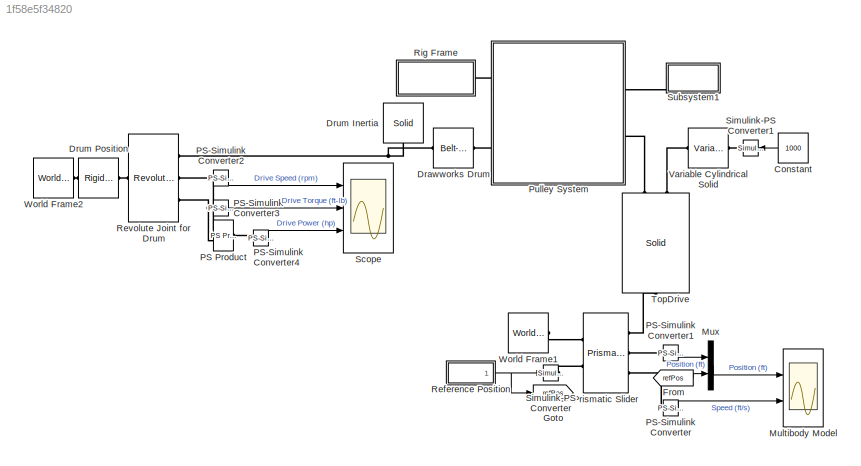
MODEL slx_1f58e5f34820
KIND model
CONFIG AbsTol = auto
CONFIG EnableMultiTasking = off
CONFIG FixedStep = auto
CONFIG InitFcn = G = 10;\nRdrum = 0.25;\nm = 1000;
CONFIG MaxStep = auto
CONFIG MinStep = auto
CONFIG PreLoadFcn = addpath('CAD_Files')
CONFIG RelTol = 1e-3
CONFIG SampleTimeConstraint = Unconstrained
CONFIG Solver = VariableStepAuto
CONFIG SolverName = VariableStepAuto
CONFIG StartTime = 0.0
CONFIG StopTime = 40
BLOCK [Constant] Constant
  Value = 1000
BLOCK [Reference] Drawworks Drum  REF=sm_lib/Belts and Cables/Belt-Cable Spool
  Ports = [0, 0, 0, 0, 0, 1, 1]
  SourceBlock = sm_lib/Belts and Cables/Belt-Cable Spool
  SourceProductBaseCode = MS
  SourceProductName = Simscape Multibody
  SourceType = Belt-Cable Spool
BLOCK [Reference] Drum Inertia  REF=sm_lib/Body Elements/Solid
  Ports = [0, 0, 0, 0, 0, 1]
  SourceBlock = sm_lib/Body Elements/Solid
  SourceProductBaseCode = MS
  SourceProductName = Simscape Multibody
  SourceType = Solid
BLOCK [Reference] Drum Position  REF=sm_lib/Frames and
Transforms/Rigid
Transform
  Ports = [0, 0, 0, 0, 0, 1, 1]
  SourceBlock = sm_lib/Frames and\nTransforms/Rigid\nTransform
  SourceProductBaseCode = MS
  SourceProductName = Simscape Multibody
  SourceType = Rigid\nTransform
BLOCK [From] From
  GotoTag = refPos
BLOCK [Goto] Goto
  GotoTag = refPos
BLOCK [Scope] Multibody Model
  Floating = off
  NumInputPorts = 2
  Ports = [2]
  ScopeSpecificationString = Simulink.scopes.TimeScopeBlockCfg('CurrentConfiguration', extmgr.ConfigurationSet(extmgr.Configuration('Core','General UI',true),extmgr.Configuration('Core','Source UI',true),extmgr.Configuration('Sources','WiredSimulink',true,'DataLoggingVariableName','ScopeData2'),extmgr.Configuration('Visuals','Time Domain',true,'SerializedDisplays',{struct('MinYLimReal','-6.03339','MaxYLimReal','54.30051','YLa...<+2068ch>
BLOCK [Mux] Mux
  DisplayOption = bar
  Inputs = 2
  Ports = [2, 1]
BLOCK [Reference] PS Product  REF=fl_lib/Physical Signals/Functions/PS Product
  Ports = [0, 0, 0, 0, 0, 2, 1]
  SourceBlock = fl_lib/Physical Signals/Functions/PS Product
  SourceProductBaseCode = SS
  SourceProductName = Simscape
  SourceType = PS Product
BLOCK [Reference] PS-Simulink Converter  REF=nesl_utility/PS-Simulink
Converter
  Ports = [0, 1, 0, 0, 0, 1]
  SourceBlock = nesl_utility/PS-Simulink\nConverter
  SourceProductBaseCode = SS
  SourceProductName = Simscape
  SourceType = PS-Simulink\nConverter
BLOCK [Reference] PS-Simulink Converter1  REF=nesl_utility/PS-Simulink
Converter
  Ports = [0, 1, 0, 0, 0, 1]
  SourceBlock = nesl_utility/PS-Simulink\nConverter
  SourceProductBaseCode = SS
  SourceProductName = Simscape
  SourceType = PS-Simulink\nConverter
BLOCK [Reference] PS-Simulink Converter2  REF=nesl_utility/PS-Simulink
Converter
  Ports = [0, 1, 0, 0, 0, 1]
  SourceBlock = nesl_utility/PS-Simulink\nConverter
  SourceProductBaseCode = SS
  SourceProductName = Simscape
  SourceType = PS-Simulink\nConverter
BLOCK [Reference] PS-Simulink Converter3  REF=nesl_utility/PS-Simulink
Converter
  Ports = [0, 1, 0, 0, 0, 1]
  SourceBlock = nesl_utility/PS-Simulink\nConverter
  SourceProductBaseCode = SS
  SourceProductName = Simscape
  SourceType = PS-Simulink\nConverter
BLOCK [Reference] PS-Simulink Converter4  REF=nesl_utility/PS-Simulink
Converter
  Ports = [0, 1, 0, 0, 0, 1]
  SourceBlock = nesl_utility/PS-Simulink\nConverter
  SourceProductBaseCode = SS
  SourceProductName = Simscape
  SourceType = PS-Simulink\nConverter
BLOCK [Reference] Prismatic Slider  REF=sm_lib/Joints/Prismatic
Joint
  Ports = [0, 0, 0, 0, 0, 2, 3]
  SourceBlock = sm_lib/Joints/Prismatic\nJoint
  SourceProductBaseCode = MS
  SourceProductName = Simscape Multibody
  SourceType = Prismatic\nJoint
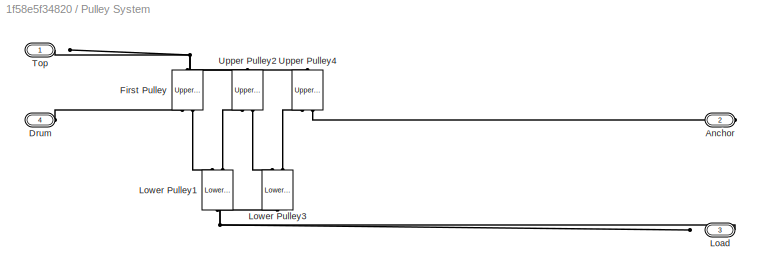
BLOCK [SubSystem] Pulley System
  Ports = [0, 0, 0, 0, 0, 2, 2]
  RequestExecContextInheritance = off
BLOCK [PMIOPort] Pulley System/Anchor
  Port = 2
  Side = Right
BLOCK [PMIOPort] Pulley System/Drum
  Port = 4
  Side = Left
BLOCK [Reference] Pulley System/First Pulley  REF=pulleyLibrary/UpperPulley
  Ports = [0, 0, 0, 0, 0, 1, 2]
  SourceBlock = pulleyLibrary/UpperPulley
BLOCK [PMIOPort] Pulley System/Load
  Port = 3
  Side = Right
BLOCK [Reference] Pulley System/Lower Pulley1  REF=pulleyLibrary/LowerPulley
  Ports = [0, 0, 0, 0, 0, 1, 2]
  SourceBlock = pulleyLibrary/LowerPulley
BLOCK [Reference] Pulley System/Lower Pulley3  REF=pulleyLibrary/LowerPulley
  Ports = [0, 0, 0, 0, 0, 1, 2]
  SourceBlock = pulleyLibrary/LowerPulley
BLOCK [PMIOPort] Pulley System/Top
  Side = Left
BLOCK [Reference] Pulley System/Upper Pulley2  REF=pulleyLibrary/UpperPulley
  Ports = [0, 0, 0, 0, 0, 1, 2]
  SourceBlock = pulleyLibrary/UpperPulley
BLOCK [Reference] Pulley System/Upper Pulley4  REF=pulleyLibrary/UpperPulley
  Ports = [0, 0, 0, 0, 0, 1, 2]
  SourceBlock = pulleyLibrary/UpperPulley
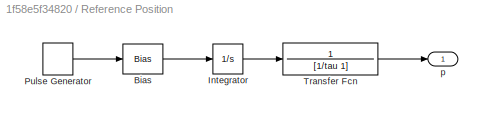
BLOCK [SubSystem] Reference Position
  Ports = [0, 1]
  RequestExecContextInheritance = off
BLOCK [Bias] Reference Position/Bias
  Bias = -dx/t
  SaturateOnIntegerOverflow = off
BLOCK [Integrator] Reference Position/Integrator
  Ports = [1, 1]
BLOCK [DiscretePulseGenerator] Reference Position/Pulse Generator
  Amplitude = dx/t*2
  Period = t*2
  Ports = [0, 1]
  PulseType = Time based
  PulseWidth = 50
BLOCK [TransferFcn] Reference Position/Transfer Fcn
  Denominator = [1/tau 1]
  Numerator = 1
BLOCK [Outport] Reference Position/p
  IconDisplay = Port number
BLOCK [Reference] Revolute Joint for Drum  REF=sm_lib/Joints/Revolute Joint
  Ports = [0, 0, 0, 0, 0, 1, 3]
  SourceBlock = sm_lib/Joints/Revolute Joint
  SourceProductBaseCode = MS
  SourceProductName = Simscape Multibody
  SourceType = Revolute Joint
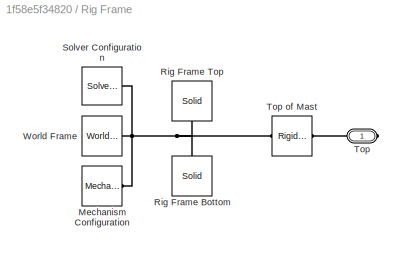
BLOCK [SubSystem] Rig Frame
  Ports = [0, 0, 0, 0, 0, 0, 1]
  RequestExecContextInheritance = off
BLOCK [Reference] Rig Frame/Mechanism Configuration  REF=sm_lib/Utilities/Mechanism
Configuration
  Ports = [0, 0, 0, 0, 0, 0, 1]
  SourceBlock = sm_lib/Utilities/Mechanism\nConfiguration
  SourceProductBaseCode = MS
  SourceProductName = Simscape Multibody
  SourceType = Mechanism\nConfiguration
BLOCK [Reference] Rig Frame/Rig Frame Bottom  REF=sm_lib/Body Elements/Solid
  Ports = [0, 0, 0, 0, 0, 1]
  SourceBlock = sm_lib/Body Elements/Solid
  SourceProductBaseCode = MS
  SourceProductName = Simscape Multibody
  SourceType = Solid
BLOCK [Reference] Rig Frame/Rig Frame Top  REF=sm_lib/Body Elements/Solid
  Ports = [0, 0, 0, 0, 0, 1]
  SourceBlock = sm_lib/Body Elements/Solid
  SourceProductBaseCode = MS
  SourceProductName = Simscape Multibody
  SourceType = Solid
BLOCK [Reference] Rig Frame/Solver Configuration   REF=nesl_utility/Solver
Configuration
  Ports = [0, 0, 0, 0, 0, 0, 1]
  SourceBlock = nesl_utility/Solver\nConfiguration
  SourceProductBaseCode = SS
  SourceProductName = Simscape
  SourceType = Solver\nConfiguration
BLOCK [PMIOPort] Rig Frame/Top
  Side = Right
BLOCK [Reference] Rig Frame/Top of Mast  REF=sm_lib/Frames and
Transforms/Rigid
Transform
  Ports = [0, 0, 0, 0, 0, 1, 1]
  SourceBlock = sm_lib/Frames and\nTransforms/Rigid\nTransform
  SourceProductBaseCode = MS
  SourceProductName = Simscape Multibody
  SourceType = Rigid\nTransform
BLOCK [Reference] Rig Frame/World Frame  REF=sm_lib/Frames and
Transforms/World Frame
  Ports = [0, 0, 0, 0, 0, 0, 1]
  SourceBlock = sm_lib/Frames and\nTransforms/World Frame
  SourceProductBaseCode = MS
  SourceProductName = Simscape Multibody
  SourceType = World Frame
BLOCK [Scope] Scope
  Floating = off
  NumInputPorts = 3
  Ports = [3]
  ScopeSpecificationString = Simulink.scopes.TimeScopeBlockCfg('CurrentConfiguration', extmgr.ConfigurationSet(extmgr.Configuration('Core','General UI',true),extmgr.Configuration('Core','Source UI',true),extmgr.Configuration('Sources','WiredSimulink',true,'DataLoggingVariableName','ScopeData1'),extmgr.Configuration('Visuals','Time Domain',true,'SerializedDisplays',{struct('MinYLimReal','-145.50164','MaxYLimReal','145.47121','...<+2754ch>
BLOCK [Reference] Simulink-PS Converter  REF=nesl_utility/Simulink-PS
Converter
  Ports = [1, 0, 0, 0, 0, 0, 1]
  SourceBlock = nesl_utility/Simulink-PS\nConverter
  SourceProductBaseCode = SS
  SourceProductName = Simscape
  SourceType = Simulink-PS\nConverter
BLOCK [Reference] Simulink-PS Converter1  REF=nesl_utility/Simulink-PS
Converter
  Ports = [1, 0, 0, 0, 0, 0, 1]
  SourceBlock = nesl_utility/Simulink-PS\nConverter
  SourceProductBaseCode = SS
  SourceProductName = Simscape
  SourceType = Simulink-PS\nConverter
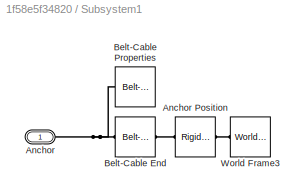
BLOCK [SubSystem] Subsystem1
  Ports = [0, 0, 0, 0, 0, 1]
  RequestExecContextInheritance = off
BLOCK [PMIOPort] Subsystem1/Anchor
  Side = Left
BLOCK [Reference] Subsystem1/Anchor Position  REF=sm_lib/Frames and
Transforms/Rigid
Transform
  Ports = [0, 0, 0, 0, 0, 1, 1]
  SourceBlock = sm_lib/Frames and\nTransforms/Rigid\nTransform
  SourceProductBaseCode = MS
  SourceProductName = Simscape Multibody
  SourceType = Rigid\nTransform
BLOCK [Reference] Subsystem1/Belt-Cable End  REF=sm_lib/Belts and Cables/Belt-Cable End
  Ports = [0, 0, 0, 0, 0, 1, 1]
  SourceBlock = sm_lib/Belts and Cables/Belt-Cable End
  SourceProductBaseCode = MS
  SourceProductName = Simscape Multibody
  SourceType = Belt-Cable End
BLOCK [Reference] Subsystem1/Belt-Cable Properties  REF=sm_lib/Belts and Cables/Belt-Cable
Properties
  Ports = [0, 0, 0, 0, 0, 1]
  SourceBlock = sm_lib/Belts and Cables/Belt-Cable\nProperties
  SourceProductBaseCode = MS
  SourceProductName = Simscape Multibody
  SourceType = Belt-Cable\nProperties
BLOCK [Reference] Subsystem1/World Frame3  REF=sm_lib/Frames and
Transforms/World Frame
  Ports = [0, 0, 0, 0, 0, 0, 1]
  SourceBlock = sm_lib/Frames and\nTransforms/World Frame
  SourceProductBaseCode = MS
  SourceProductName = Simscape Multibody
  SourceType = World Frame
BLOCK [Reference] TopDrive  REF=sm_lib/Body Elements/Solid
  Ports = [0, 0, 0, 0, 0, 2, 1]
  SourceBlock = sm_lib/Body Elements/Solid
  SourceProductBaseCode = MS
  SourceProductName = Simscape Multibody
  SourceType = Solid
BLOCK [Reference] Variable Cylindrical Solid  REF=sm_lib/Body Elements/Variable Mass/Variable
Cylindrical Solid
  Ports = [0, 0, 0, 0, 0, 1, 1]
  SourceBlock = sm_lib/Body Elements/Variable Mass/Variable\nCylindrical Solid
  SourceProductBaseCode = MS
  SourceProductName = Simscape Multibody
  SourceType = Variable\nCylindrical Solid
BLOCK [Reference] World Frame1  REF=sm_lib/Frames and
Transforms/World Frame
  Ports = [0, 0, 0, 0, 0, 0, 1]
  SourceBlock = sm_lib/Frames and\nTransforms/World Frame
  SourceProductBaseCode = MS
  SourceProductName = Simscape Multibody
  SourceType = World Frame
BLOCK [Reference] World Frame2  REF=sm_lib/Frames and
Transforms/World Frame
  Ports = [0, 0, 0, 0, 0, 0, 1]
  SourceBlock = sm_lib/Frames and\nTransforms/World Frame
  SourceProductBaseCode = MS
  SourceProductName = Simscape Multibody
  SourceType = World Frame
LINE Constant:1 -> Simulink-PS Converter1:1
LINE From:1 -> Mux:2
LINE Mux:1 -> Multibody Model:1
LINE PS-Simulink Converter1:1 -> Mux:1
LINE PS-Simulink Converter2:1 -> Scope:1
LINE PS-Simulink Converter3:1 -> Scope:2
LINE PS-Simulink Converter4:1 -> Scope:3
LINE PS-Simulink Converter:1 -> Multibody Model:2
LINE Reference Position/Bias:1 -> Reference Position/Integrator:1
LINE Reference Position/Integrator:1 -> Reference Position/Transfer Fcn:1
LINE Reference Position/Pulse Generator:1 -> Reference Position/Bias:1
LINE Reference Position/Transfer Fcn:1 -> Reference Position/p:1
NET Reference Position:1 -> Goto:1, Simulink-PS Converter:1
PNET net1: Drawworks Drum:LConn1 -- Drum Inertia:LConn1 -- Revolute Joint for Drum:RConn1
PLINE Drawworks Drum:RConn1 -- Pulley System:LConn2
PLINE Drum Position:LConn1 -- World Frame2:RConn1
PLINE Drum Position:RConn1 -- Revolute Joint for Drum:LConn1
PNET net2: PS Product:LConn1 -- PS-Simulink Converter2:LConn1 -- Revolute Joint for Drum:RConn2
PNET net3: PS Product:LConn2 -- PS-Simulink Converter3:LConn1 -- Revolute Joint for Drum:RConn3
PLINE PS Product:RConn1 -- PS-Simulink Converter4:LConn1
PLINE PS-Simulink Converter1:LConn1 -- Prismatic Slider:RConn2
PLINE PS-Simulink Converter:LConn1 -- Prismatic Slider:RConn3
PLINE Prismatic Slider:LConn1 -- World Frame1:RConn1
PLINE Prismatic Slider:LConn2 -- Simulink-PS Converter:RConn1
PLINE Prismatic Slider:RConn1 -- TopDrive:RConn1
PLINE Pulley System/Anchor:RConn1 -- Pulley System/Upper Pulley4:RConn2
PLINE Pulley System/Drum:RConn1 -- Pulley System/First Pulley:RConn1
PNET net4: Pulley System/First Pulley:LConn1 -- Pulley System/Top:RConn1 -- Pulley System/Upper Pulley2:LConn1 -- Pulley System/Upper Pulley4:LConn1
PLINE Pulley System/First Pulley:RConn2 -- Pulley System/Lower Pulley1:RConn1
PNET net5: Pulley System/Load:RConn1 -- Pulley System/Lower Pulley1:LConn1 -- Pulley System/Lower Pulley3:LConn1
PLINE Pulley System/Lower Pulley1:RConn2 -- Pulley System/Upper Pulley2:RConn1
PLINE Pulley System/Lower Pulley3:RConn1 -- Pulley System/Upper Pulley2:RConn2
PLINE Pulley System/Lower Pulley3:RConn2 -- Pulley System/Upper Pulley4:RConn1
PLINE Pulley System:LConn1 -- Rig Frame:RConn1
PLINE Pulley System:RConn1 -- Subsystem1:LConn1
PLINE Pulley System:RConn2 -- TopDrive:LConn1
PNET net6: Rig Frame/Mechanism Configuration:RConn1 -- Rig Frame/Rig Frame Bottom:LConn1 -- Rig Frame/Rig Frame Top:LConn1 -- Rig Frame/Solver Configuration :RConn1 -- Rig Frame/Top of Mast:LConn1 -- Rig Frame/World Frame:RConn1
PLINE Rig Frame/Top of Mast:RConn1 -- Rig Frame/Top:RConn1
PLINE Simulink-PS Converter1:RConn1 -- Variable Cylindrical Solid:LConn1
PLINE Subsystem1/Anchor Position:LConn1 -- Subsystem1/World Frame3:RConn1
PLINE Subsystem1/Anchor Position:RConn1 -- Subsystem1/Belt-Cable End:LConn1
PNET net7: Subsystem1/Anchor:RConn1 -- Subsystem1/Belt-Cable End:RConn1 -- Subsystem1/Belt-Cable Properties:LConn1
PLINE TopDrive:LConn2 -- Variable Cylindrical Solid:RConn1
note: NET lines group one-source signal fan-out (src -> all destinations, sorted); 1:1 wires keep LINE; PNET lines group multi-terminal physical nets as a canonical sorted terminal list (undirected conserving connections); 2-terminal nets keep the pairwise PLINE form
